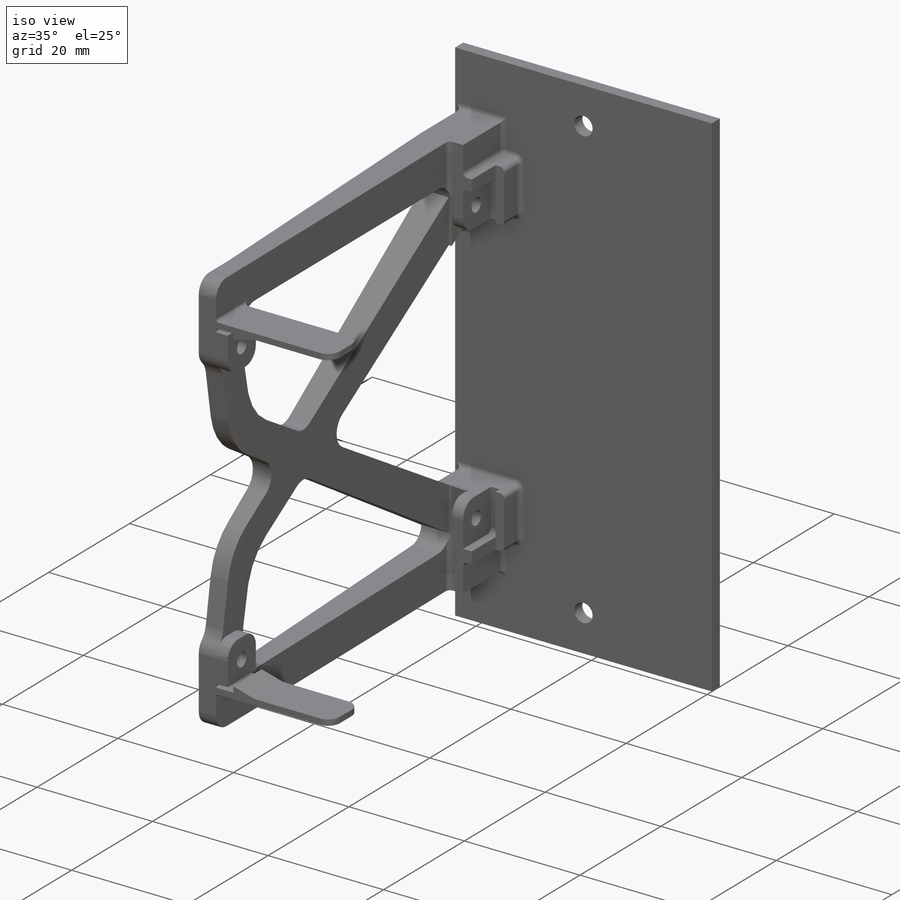
[diagram: iso view]
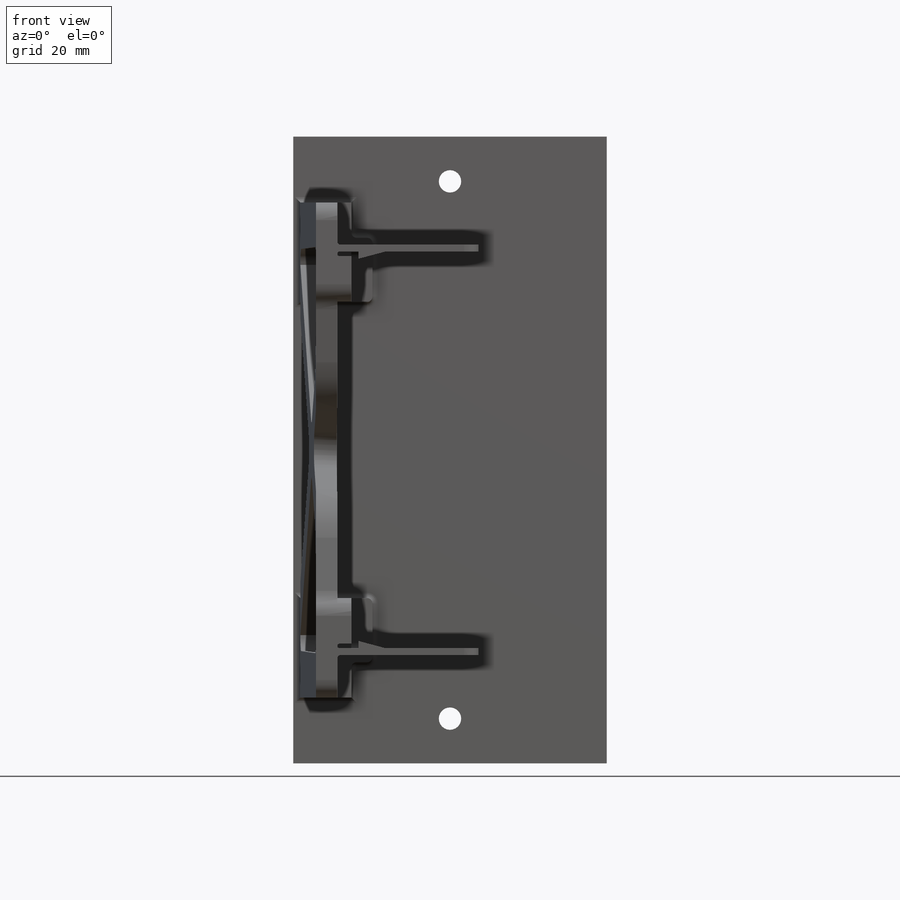
[diagram: front view]
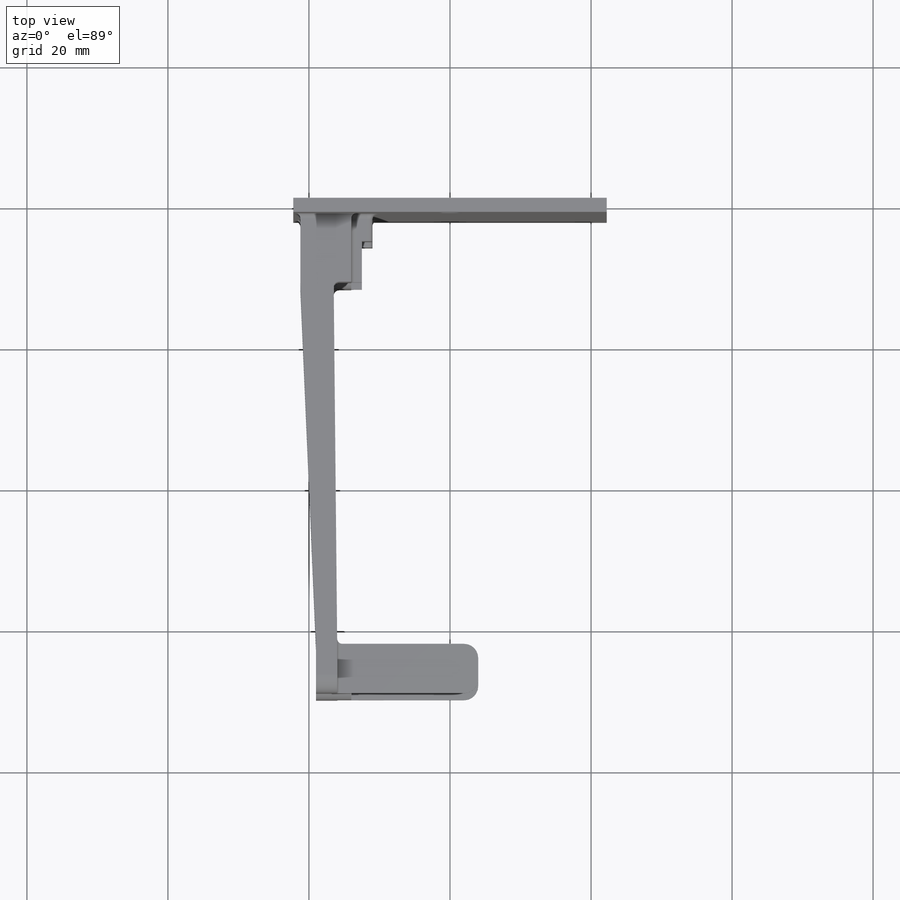
[diagram: top view]
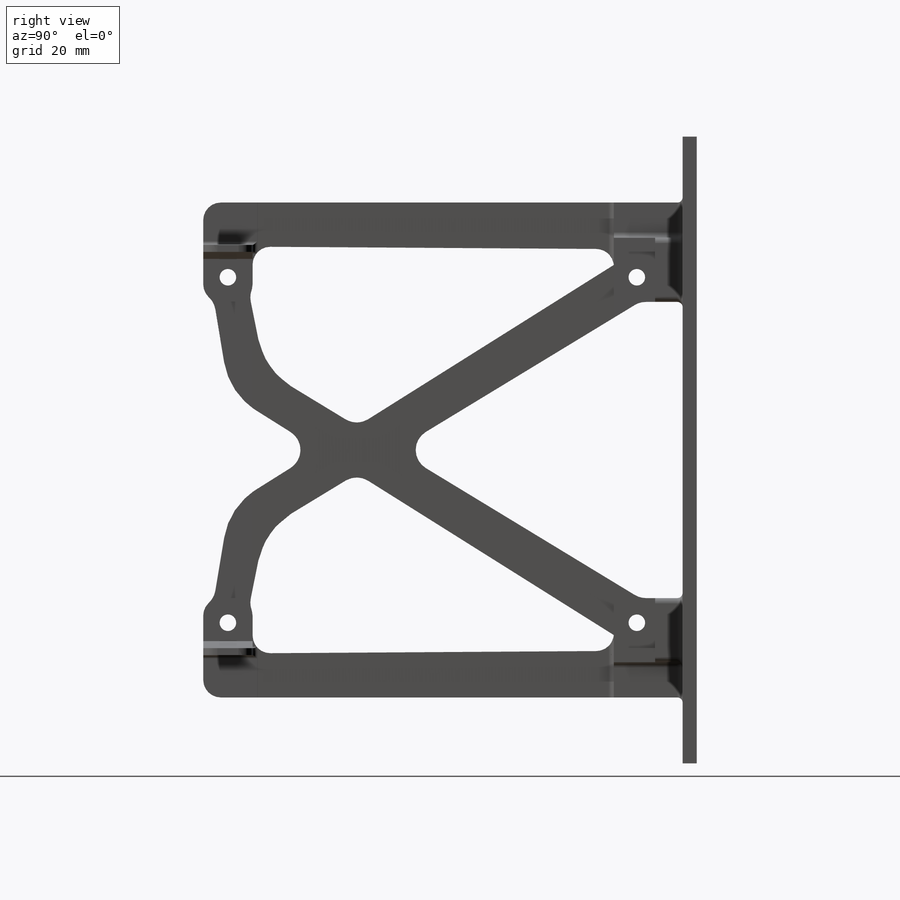
[diagram: right view]
SOLIDWORKS PART (.sldprt)
format: sldprt  version: not decoded by parser v0  size: 1,500,672 bytes
history: native  units: mm
features: sketch x10, extrude x10, plane x8, fillet x8, boolean_combine x4, mirror x3, material x1, surface_op x1 (+12 scaffold rows collapsed)
feature tree (57):
  scaffold x12  (default folders/planes/origin — collapsed)
  material  "Material <not specified>"
  surface_op  "Surface-Offset2"
  plane  "Plane2"
  sketch  "Front Face"  dims[c1.D1=3.175mm c1.D2=8.0mm c1.D3=76.2mm c1.D4=3.0mm c2.D2=88.9mm c2.D5=44.45mm]
  extrude  "Boss-Extrude1"  Depth=2mm
  plane  "Plane-FaceRear"
  plane  "Plane1"
  plane  "Plane3"
  sketch  "Sketch2"  dims[D1=2.35mm D2=3.5mm D3=3.5mm D4=3.25mm D5=3.5mm D6=0.5mm]
  extrude  "Boss-Extrude3"  Depth=50mm
  sketch  "Sketch1"  dims[c1.D1=2.0mm c1.D2=2.0mm c1.D3=5.0mm c1.D4=3.0mm c1.D5=3.0mm c1.D6=1.0mm c2.D1=2.5mm]
  extrude  "Boss-Extrude2"  Depth=50mm
  boolean_combine  "Combine1"
  plane  "Plane4"
  sketch  "Sketch3"  dims[D1=2.0mm D2=0.1mm D3=0.1mm D4=2.0mm]
  sketch  "Sketch4"  dims[D1=1.0mm]
  extrude  "Boss-Extrude6"  Depth=1.5mm
  extrude  "Boss-Extrude5"  Depth=0.5mm
  sketch  "Sketch5"  dims[c1.D3=3.0mm c1.D1=2.0mm c1.D2=0.25mm c2.D3=~2.877856mm c2.D1=0.5mm]
  extrude  "Boss-Extrude7"  [1 undecoded]
  boolean_combine  "Combine2"
  sketch  "Sketch6"  dims[D1=1.0mm D2=0.1mm]
  extrude  "Boss-Extrude8"  Depth=20mm
  fillet  "Fillet1"  Radius=0.5mm
  fillet  "Fillet2"  Radius=2mm
  fillet  "Fillet3"  Radius=0.27mm
  fillet  "Fillet4"  Radius=2.5mm
  fillet  "Fillet5"  Radius=0.75mm
  mirror  "Mirror2"
  boolean_combine  "Combine3"
  fillet  "Fillet6"  Radius=0.75mm
  sketch  "Sketch8"  dims[c1.D1=2.5mm c1.D2=6.5mm c1.D3=1.0mm c1.D4=~18.809485mm c2.D4=7.0deg c2.D5=6.0mm]
  extrude  "Boss-Extrude9"  [1 undecoded]
  sketch  "Sketch1<2>"  dims[D1=100.0mm]
  extrude  "Boss-Extrude10"  Depth=50mm
  boolean_combine  "Combine4"
  fillet  "Fillet7"  Radius=10mm
  plane  "Plane5"
  mirror  "Mirror4"
  fillet  "Fillet8"  Radius=3mm
  sketch  "Sketch9"  dims[c1.D1=1.0mm c1.D2=~4.446457mm c2.D2=15.0deg]
  plane  "Plane6"
  plane  "Plane7"
  extrude  "Boss-Extrude12"  [1 undecoded]
  mirror  "Mirror5"
decode coverage: 25 of 36 modeling features carry decoded parameters
note: ~ marks probable driven/reference dimensions
note: 3 parameter values undecoded
summary: no parameter record found for 3 features
note: suppression state not decoded; provenance and decode notes live in map.json
